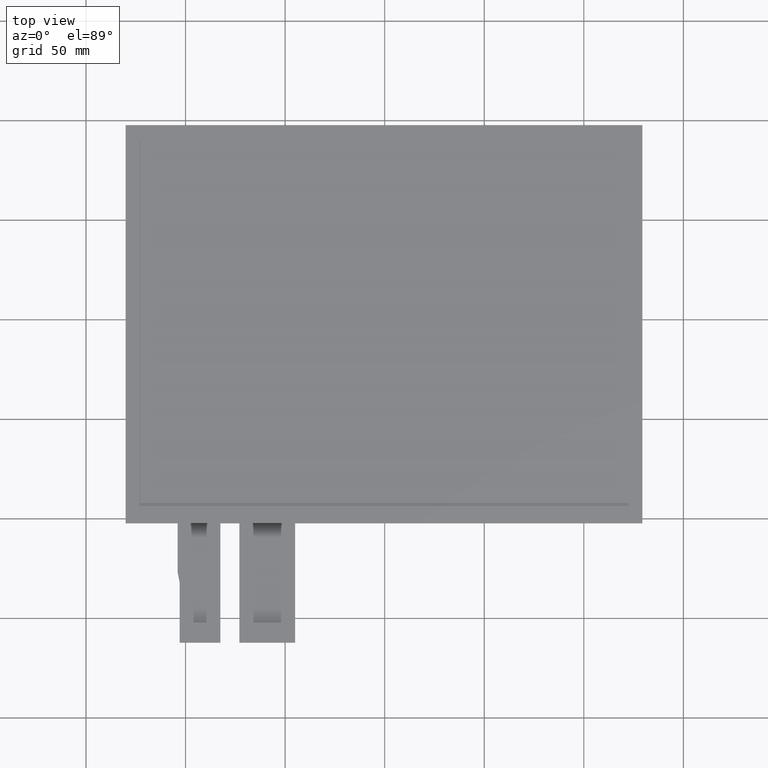
[diagram: clean part render]
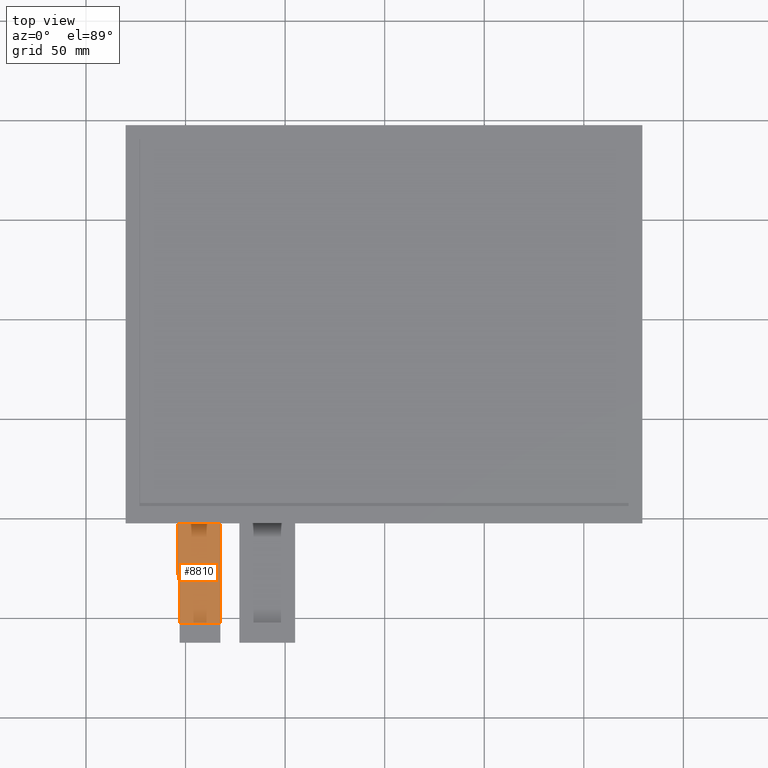
[diagram: same view with one face highlighted and labeled with its STEP entity id]
A machine part, top view. The second image highlights one B-rep face of the part: STEP entity #8810.
In plain terms, the highlighted planar face has unit normal (0, 0, 1).
Its self-contained STEP definition (entity closure, byte-faithful):
#474=PLANE('',#9264);
#896=FACE_OUTER_BOUND('',#1318,.T.);
#1318=EDGE_LOOP('',(#8311,#8312,#8313,#8314,#8315,#8316,#8317,#8318));
#1347=LINE('',#11413,#2583);
#1351=LINE('',#11422,#2587);
#1756=LINE('',#12250,#2992);
#2518=LINE('',#13773,#3754);
#2531=LINE('',#13799,#3767);
#2538=LINE('',#13813,#3774);
#2583=VECTOR('',#9303,10.);
#2587=VECTOR('',#9313,10.);
#2992=VECTOR('',#9754,10.);
#3754=VECTOR('',#11278,10.);
#3767=VECTOR('',#11301,10.);
#3774=VECTOR('',#11318,10.);
#3812=CIRCLE('',#8849,5.);
#3814=CIRCLE('',#8854,5.);
#3825=VERTEX_POINT('',#11392);
#3826=VERTEX_POINT('',#11394);
#3833=VERTEX_POINT('',#11412);
#3834=VERTEX_POINT('',#11416);
#3835=VERTEX_POINT('',#11417);
#4239=VERTEX_POINT('',#12247);
#4240=VERTEX_POINT('',#12249);
#4620=VERTEX_POINT('',#13771);
#4657=EDGE_CURVE('',#3825,#3826,#3812,.T.);
#4666=EDGE_CURVE('',#3833,#3826,#1347,.T.);
#4668=EDGE_CURVE('',#3834,#3835,#3814,.T.);
#4671=EDGE_CURVE('',#3825,#3835,#1351,.T.);
#5084=EDGE_CURVE('',#4240,#4239,#1756,.T.);
#5846=EDGE_CURVE('',#3834,#4620,#2518,.T.);
#5859=EDGE_CURVE('',#4620,#4240,#2531,.T.);
#5866=EDGE_CURVE('',#3833,#4239,#2538,.T.);
#8311=ORIENTED_EDGE('',*,*,#4657,.F.);
#8312=ORIENTED_EDGE('',*,*,#4671,.T.);
#8313=ORIENTED_EDGE('',*,*,#4668,.F.);
#8314=ORIENTED_EDGE('',*,*,#5846,.T.);
#8315=ORIENTED_EDGE('',*,*,#5859,.T.);
#8316=ORIENTED_EDGE('',*,*,#5084,.T.);
#8317=ORIENTED_EDGE('',*,*,#5866,.F.);
#8318=ORIENTED_EDGE('',*,*,#4666,.T.);
#8810=ADVANCED_FACE('',(#896),#474,.T.);
#8849=AXIS2_PLACEMENT_3D('',#11395,#9288,#9289);
#8854=AXIS2_PLACEMENT_3D('',#11418,#9307,#9308);
#9264=AXIS2_PLACEMENT_3D('',#13812,#11316,#11317);
#9288=DIRECTION('center_axis',(0.,0.,-1.));
#9289=DIRECTION('ref_axis',(-0.995396198367179,-0.0958457525202229,0.));
#9303=DIRECTION('',(7.22523740490262E-16,-1.,0.));
#9307=DIRECTION('center_axis',(0.,0.,1.));
#9308=DIRECTION('ref_axis',(0.995396198367179,0.0958457525202229,0.));
#9313=DIRECTION('',(0.190808995376545,-0.981627183447664,0.));
#9754=DIRECTION('',(-2.96059473233375E-16,1.,0.));
#11278=DIRECTION('',(5.86837409778742E-16,-1.,0.));
#11301=DIRECTION('',(1.,0.,0.));
#11316=DIRECTION('center_axis',(0.,0.,1.));
#11317=DIRECTION('ref_axis',(1.,0.,0.));
#11318=DIRECTION('',(1.,2.05359172185E-16,0.));
#11392=CARTESIAN_POINT('',(-103.908135917238,-127.408045719925,-1.1));
#11394=CARTESIAN_POINT('',(-104.,-126.454000743042,-1.1));
#11395=CARTESIAN_POINT('Origin',(-98.9999999999999,-126.454000743042,-1.1));
#11412=CARTESIAN_POINT('',(-104.,-102.35,-1.1));
#11413=CARTESIAN_POINT('',(-104.,-102.35,-1.1));
#11416=CARTESIAN_POINT('',(-103.,-132.561445240988,-1.1));
#11417=CARTESIAN_POINT('',(-103.091864082762,-131.607400264105,-1.1));
#11418=CARTESIAN_POINT('Origin',(-108.,-132.561445240988,-1.1));
#11422=CARTESIAN_POINT('',(-104.,-126.93544598403,-1.1));
#12247=CARTESIAN_POINT('',(-82.4999999999999,-102.35,-1.1));
#12249=CARTESIAN_POINT('',(-82.4999999999999,-152.35,-1.1));
#12250=CARTESIAN_POINT('',(-82.4999999999999,-162.35,-1.1));
#13771=CARTESIAN_POINT('',(-103.,-152.35,-1.1));
#13773=CARTESIAN_POINT('',(-103.,-132.08,-1.1));
#13799=CARTESIAN_POINT('',(-87.8749999999999,-152.35,-1.1));
#13812=CARTESIAN_POINT('Origin',(-93.2499999999999,-132.35,-1.1));
#13813=CARTESIAN_POINT('',(18.0750000000001,-102.35,-1.1));